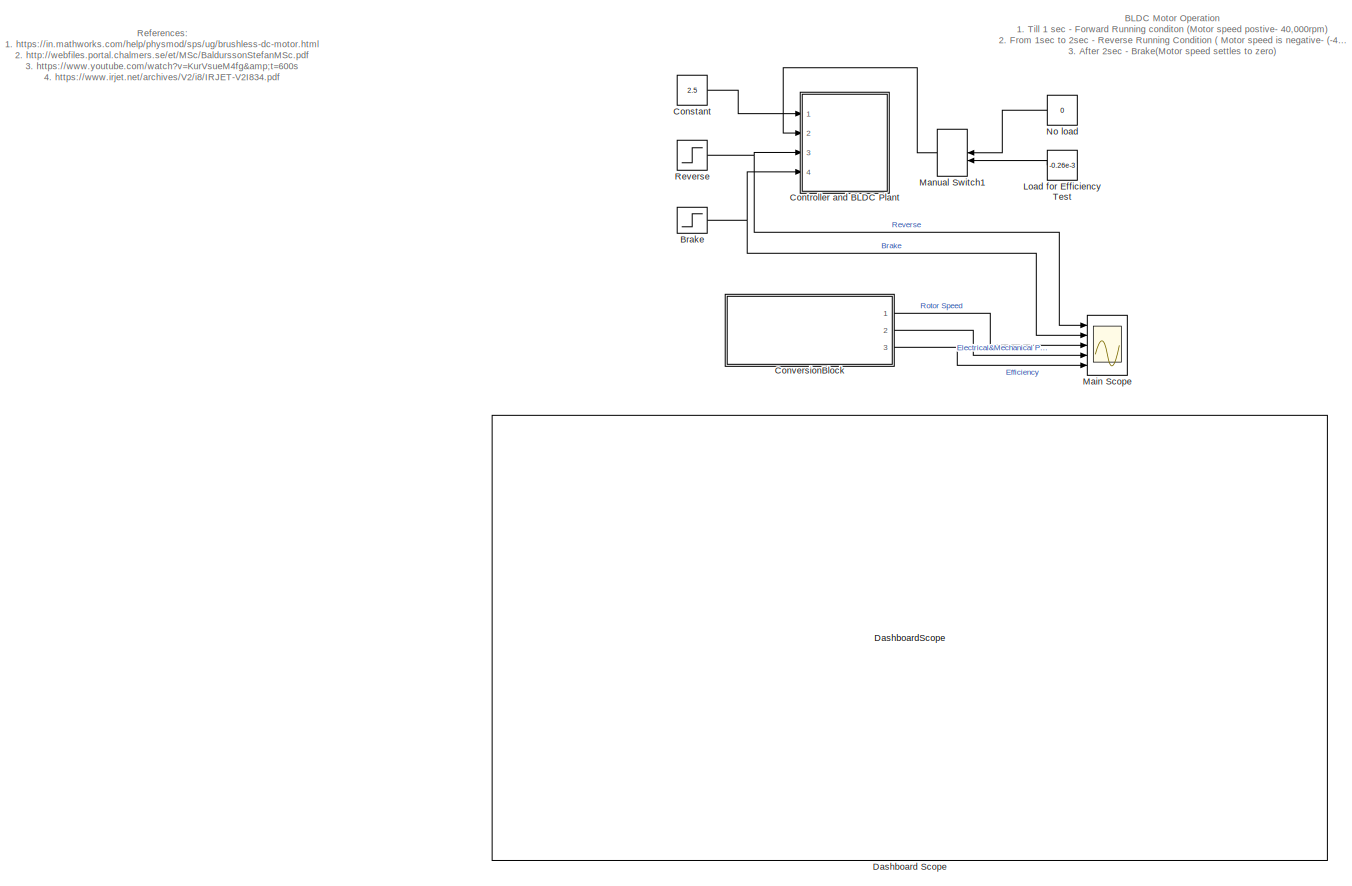
[diagram: root canvas - part 1/1, most of the canvas]
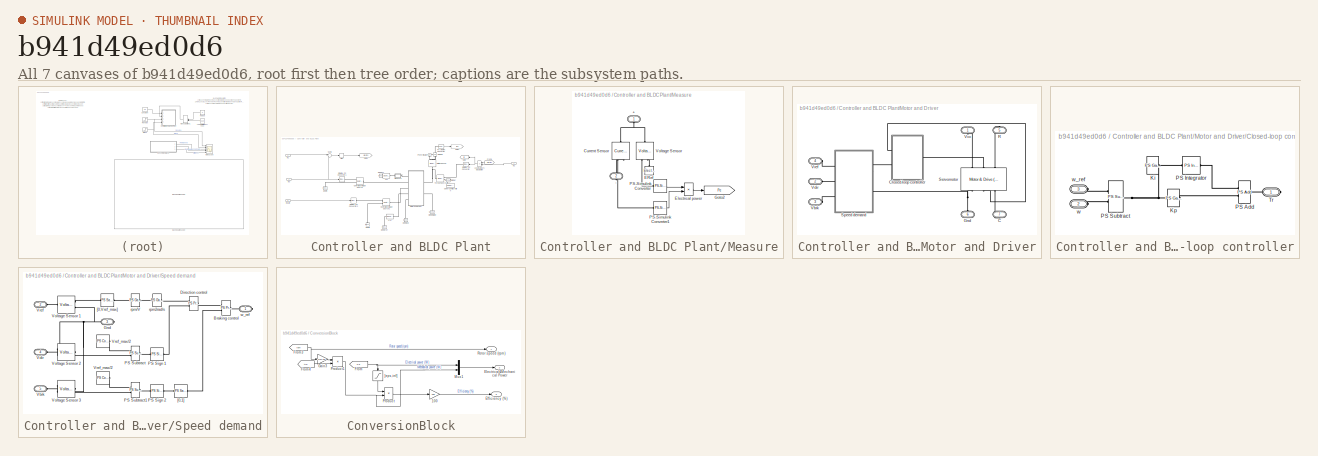
[diagram: thumbnail index - all 7 canvases of the model, root first then tree order]
MODEL slx_b941d49ed0d6
KIND model
CONFIG AbsTol = auto
CONFIG EnableMultiTasking = off
CONFIG FixedStep = auto
CONFIG MaxStep = 0.001
CONFIG MinStep = auto
CONFIG RelTol = 1e-5
CONFIG SampleTimeConstraint = Unconstrained
CONFIG SolverName = ode45
CONFIG StartTime = 0.0
CONFIG StopTime = 5
BLOCK [Step] Brake
  After = 5
  SampleTime = 0
  Time = 2
BLOCK [Constant] Constant
  Value = 2.5
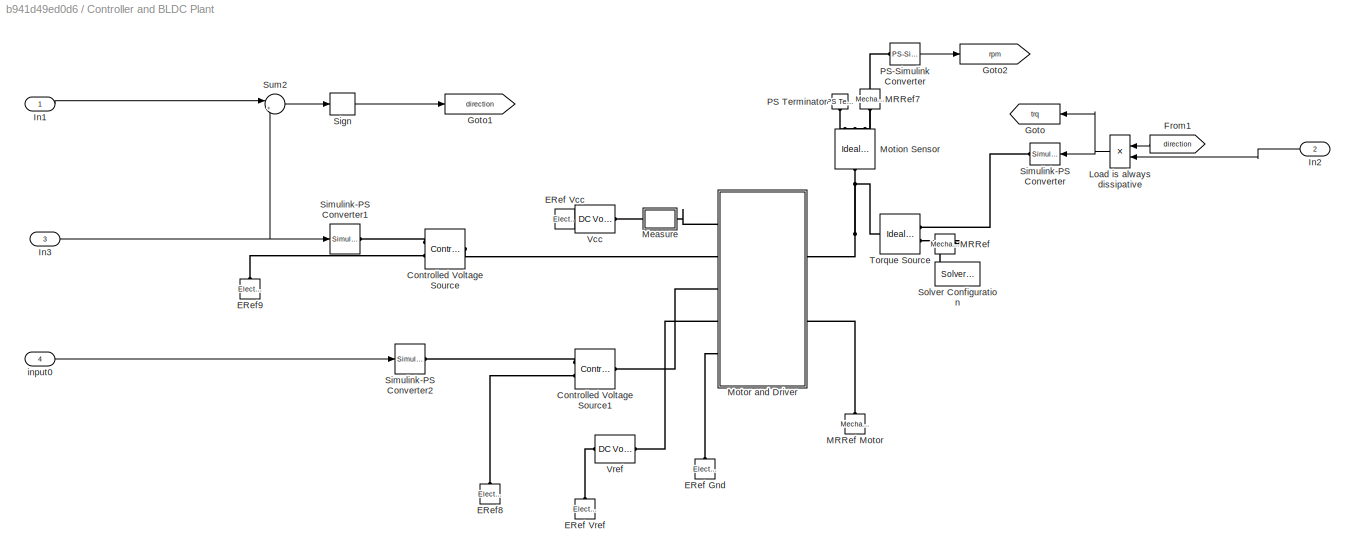
BLOCK [SubSystem] Controller and BLDC Plant
  Ports = [4]
  RequestExecContextInheritance = off
BLOCK [Reference] Controller and BLDC Plant/Controlled Voltage Source  REF=fl_lib/Electrical/Electrical Sources/Controlled Voltage
Source
  Ports = [0, 0, 0, 0, 0, 1, 2]
  SourceBlock = fl_lib/Electrical/Electrical Sources/Controlled Voltage\nSource
  SourceProductName = Foundation Library
  SourceType = Controlled Voltage\nSource
BLOCK [Reference] Controller and BLDC Plant/Controlled Voltage Source1  REF=fl_lib/Electrical/Electrical Sources/Controlled Voltage
Source
  Ports = [0, 0, 0, 0, 0, 1, 2]
  SourceBlock = fl_lib/Electrical/Electrical Sources/Controlled Voltage\nSource
  SourceProductName = Foundation Library
  SourceType = Controlled Voltage\nSource
BLOCK [Reference] Controller and BLDC Plant/ERef Gnd  REF=fl_lib/Electrical/Electrical Elements/Electrical Reference
  NameLocation = right
  Ports = [0, 0, 0, 0, 0, 1]
  SourceBlock = fl_lib/Electrical/Electrical Elements/Electrical Reference
  SourceProductName = Foundation Library
  SourceType = Electrical Reference
BLOCK [Reference] Controller and BLDC Plant/ERef Vcc  REF=fl_lib/Electrical/Electrical Elements/Electrical Reference
  Ports = [0, 0, 0, 0, 0, 1]
  SourceBlock = fl_lib/Electrical/Electrical Elements/Electrical Reference
  SourceProductName = Foundation Library
  SourceType = Electrical Reference
BLOCK [Reference] Controller and BLDC Plant/ERef Vref  REF=fl_lib/Electrical/Electrical Elements/Electrical Reference
  NameLocation = right
  Ports = [0, 0, 0, 0, 0, 1]
  SourceBlock = fl_lib/Electrical/Electrical Elements/Electrical Reference
  SourceProductName = Foundation Library
  SourceType = Electrical Reference
BLOCK [Reference] Controller and BLDC Plant/ERef8  REF=fl_lib/Electrical/Electrical Elements/Electrical Reference
  NameLocation = right
  Ports = [0, 0, 0, 0, 0, 1]
  SourceBlock = fl_lib/Electrical/Electrical Elements/Electrical Reference
  SourceProductName = Foundation Library
  SourceType = Electrical Reference
BLOCK [Reference] Controller and BLDC Plant/ERef9  REF=fl_lib/Electrical/Electrical Elements/Electrical Reference
  NameLocation = right
  Ports = [0, 0, 0, 0, 0, 1]
  SourceBlock = fl_lib/Electrical/Electrical Elements/Electrical Reference
  SourceProductName = Foundation Library
  SourceType = Electrical Reference
BLOCK [From] Controller and BLDC Plant/From1
  GotoTag = direction
  TagVisibility = global
BLOCK [Goto] Controller and BLDC Plant/Goto
  GotoTag = trq
  NameLocation = top
  TagVisibility = global
BLOCK [Goto] Controller and BLDC Plant/Goto1
  GotoTag = direction
  TagVisibility = global
BLOCK [Goto] Controller and BLDC Plant/Goto2
  GotoTag = rpm
  TagVisibility = global
BLOCK [Inport] Controller and BLDC Plant/In1
BLOCK [Inport] Controller and BLDC Plant/In2
  Port = 2
BLOCK [Inport] Controller and BLDC Plant/In3
  Port = 3
BLOCK [Product] Controller and BLDC Plant/Load is always dissipative
  InputSameDT = on
  OutDataTypeStr = Inherit: Same as first input
  Ports = [2, 1]
  SaturateOnIntegerOverflow = on
BLOCK [Reference] Controller and BLDC Plant/MRRef  REF=fl_lib/Mechanical/Rotational Elements/Mechanical
Rotational Reference
  Ports = [0, 0, 0, 0, 0, 1]
  SourceBlock = fl_lib/Mechanical/Rotational Elements/Mechanical\nRotational Reference
  SourceProductName = Foundation Library
  SourceType = Mechanical\nRotational Reference
BLOCK [Reference] Controller and BLDC Plant/MRRef Motor  REF=fl_lib/Mechanical/Rotational Elements/Mechanical
Rotational Reference
  NameLocation = right
  Ports = [0, 0, 0, 0, 0, 1]
  SourceBlock = fl_lib/Mechanical/Rotational Elements/Mechanical\nRotational Reference
  SourceProductName = Foundation Library
  SourceType = Mechanical\nRotational Reference
BLOCK [Reference] Controller and BLDC Plant/MRRef7  REF=fl_lib/Mechanical/Rotational Elements/Mechanical
Rotational Reference
  NameLocation = left
  Ports = [0, 0, 0, 0, 0, 1]
  SourceBlock = fl_lib/Mechanical/Rotational Elements/Mechanical\nRotational Reference
  SourceProductName = Foundation Library
  SourceType = Mechanical\nRotational Reference
BLOCK [SubSystem] Controller and BLDC Plant/Measure
  Ports = [0, 0, 0, 0, 0, 1, 1]
  RequestExecContextInheritance = off
BLOCK [PMIOPort] Controller and BLDC Plant/Measure/+
  NameLocation = right
  Side = Left
BLOCK [PMIOPort] Controller and BLDC Plant/Measure/-
  NameLocation = left
  Port = 2
  Side = Right
BLOCK [Reference] Controller and BLDC Plant/Measure/Current Sensor  REF=fl_lib/Electrical/Electrical Sensors/Current Sensor
  NameLocation = left
  Ports = [0, 0, 0, 0, 0, 1, 2]
  SourceBlock = fl_lib/Electrical/Electrical Sensors/Current Sensor
  SourceProductName = Foundation Library
  SourceType = Current Sensor
BLOCK [Reference] Controller and BLDC Plant/Measure/ERef  REF=fl_lib/Electrical/Electrical Elements/Electrical Reference
  NameLocation = right
  Ports = [0, 0, 0, 0, 0, 1]
  SourceBlock = fl_lib/Electrical/Electrical Elements/Electrical Reference
  SourceProductName = Foundation Library
  SourceType = Electrical Reference
BLOCK [Product] Controller and BLDC Plant/Measure/Electrical power
  InputSameDT = on
  OutDataTypeStr = Inherit: Same as first input
  Ports = [2, 1]
  SaturateOnIntegerOverflow = on
BLOCK [Goto] Controller and BLDC Plant/Measure/Goto2
  GotoTag = Pe
  TagVisibility = global
BLOCK [Reference] Controller and BLDC Plant/Measure/PS-Simulink Converter  REF=nesl_utility/PS-Simulink
Converter
  Ports = [0, 1, 0, 0, 0, 1]
  SourceBlock = nesl_utility/PS-Simulink\nConverter
  SourceProductName = Utilities
  SourceType = PS-Simulink\nConverter
BLOCK [Reference] Controller and BLDC Plant/Measure/PS-Simulink Converter1  REF=nesl_utility/PS-Simulink
Converter
  Ports = [0, 1, 0, 0, 0, 1]
  SourceBlock = nesl_utility/PS-Simulink\nConverter
  SourceProductName = Utilities
  SourceType = PS-Simulink\nConverter
BLOCK [Reference] Controller and BLDC Plant/Measure/Voltage Sensor  REF=fl_lib/Electrical/Electrical Sensors/Voltage Sensor
  NameLocation = right
  Ports = [0, 0, 0, 0, 0, 1, 2]
  SourceBlock = fl_lib/Electrical/Electrical Sensors/Voltage Sensor
  SourceProductName = Foundation Library
  SourceType = Voltage Sensor
BLOCK [Reference] Controller and BLDC Plant/Motion Sensor  REF=fl_lib/Mechanical/Mechanical Sensors/Ideal Rotational
Motion Sensor
  NameLocation = left
  Ports = [0, 0, 0, 0, 0, 1, 3]
  SourceBlock = fl_lib/Mechanical/Mechanical Sensors/Ideal Rotational\nMotion Sensor
  SourceProductName = Foundation Library
  SourceType = Ideal Rotational\nMotion Sensor
BLOCK [SubSystem] Controller and BLDC Plant/Motor and Driver
  Ports = [0, 0, 0, 0, 0, 5, 2]
  RequestExecContextInheritance = off
  Tag = PublishSubsystem
BLOCK [PMIOPort] Controller and BLDC Plant/Motor and Driver/C
  NameLocation = right
  Port = 7
  Side = Right
BLOCK [SubSystem] Controller and BLDC Plant/Motor and Driver/Closed-loop controller
  Ports = [0, 0, 0, 0, 0, 2, 1]
  RequestExecContextInheritance = off
BLOCK [Reference] Controller and BLDC Plant/Motor and Driver/Closed-loop controller/Ki  REF=fl_ps_legacy_lib/Legacy Physical
Signals/Functions/PS Gain
  Ports = [0, 0, 0, 0, 0, 1, 1]
  SourceBlock = fl_ps_legacy_lib/Legacy Physical\nSignals/Functions/PS Gain
  SourceProductBaseCode = SS
  SourceType = PS Gain
BLOCK [Reference] Controller and BLDC Plant/Motor and Driver/Closed-loop controller/Kp  REF=fl_ps_legacy_lib/Legacy Physical
Signals/Functions/PS Gain
  Ports = [0, 0, 0, 0, 0, 1, 1]
  SourceBlock = fl_ps_legacy_lib/Legacy Physical\nSignals/Functions/PS Gain
  SourceProductBaseCode = SS
  SourceType = PS Gain
BLOCK [Reference] Controller and BLDC Plant/Motor and Driver/Closed-loop controller/PS Add  REF=fl_ps_legacy_lib/Legacy Physical
Signals/Functions/PS Add
  Ports = [0, 0, 0, 0, 0, 2, 1]
  SourceBlock = fl_ps_legacy_lib/Legacy Physical\nSignals/Functions/PS Add
  SourceProductBaseCode = SS
  SourceType = PS Add
BLOCK [Reference] Controller and BLDC Plant/Motor and Driver/Closed-loop controller/PS Integrator  REF=fl_ps_legacy_lib/Legacy Physical
Signals/Linear Operators/PS Integrator
  Ports = [0, 0, 0, 0, 0, 1, 1]
  SourceBlock = fl_ps_legacy_lib/Legacy Physical\nSignals/Linear Operators/PS Integrator
  SourceProductBaseCode = SS
  SourceType = PS Integrator
BLOCK [Reference] Controller and BLDC Plant/Motor and Driver/Closed-loop controller/PS Subtract  REF=fl_ps_legacy_lib/Legacy Physical
Signals/Functions/PS Subtract
  Ports = [0, 0, 0, 0, 0, 2, 1]
  SourceBlock = fl_ps_legacy_lib/Legacy Physical\nSignals/Functions/PS Subtract
  SourceProductBaseCode = SS
  SourceType = PS Subtract
BLOCK [PMIOPort] Controller and BLDC Plant/Motor and Driver/Closed-loop controller/Tr
  Side = Right
BLOCK [PMIOPort] Controller and BLDC Plant/Motor and Driver/Closed-loop controller/w
  Port = 2
  Side = Left
BLOCK [PMIOPort] Controller and BLDC Plant/Motor and Driver/Closed-loop controller/w_ref
  NameLocation = top
  Port = 3
  Side = Left
BLOCK [PMIOPort] Controller and BLDC Plant/Motor and Driver/Gnd
  NameLocation = left
  Port = 6
  Side = Left
BLOCK [PMIOPort] Controller and BLDC Plant/Motor and Driver/R
  NameLocation = right
  Port = 5
  Side = Right
BLOCK [Reference] Controller and BLDC Plant/Motor and Driver/Servomotor  REF=ee_lib/Electromechanical/Motor & Drive
(System Level)
  NameLocation = left
  Ports = [0, 0, 0, 0, 0, 3, 3]
  SourceBlock = ee_lib/Electromechanical/Motor & Drive\n(System Level)
  SourceProductName = Electrical
  SourceType = Motor & Drive\n(System Level)
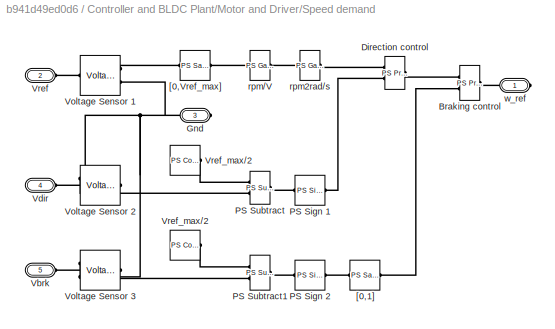
BLOCK [SubSystem] Controller and BLDC Plant/Motor and Driver/Speed demand
  Ports = [0, 0, 0, 0, 0, 3, 2]
  RequestExecContextInheritance = off
BLOCK [Reference] Controller and BLDC Plant/Motor and Driver/Speed demand/ Vref_max//2   REF=fl_lib/Physical Signals/Sources/PS Constant
  Ports = [0, 0, 0, 0, 0, 0, 1]
  SourceBlock = fl_lib/Physical Signals/Sources/PS Constant
  SourceProductName = Foundation Library
  SourceType = PS Constant
BLOCK [Reference] Controller and BLDC Plant/Motor and Driver/Speed demand/Braking control  REF=fl_ps_legacy_lib/Legacy Physical
Signals/Functions/PS Product
  Ports = [0, 0, 0, 0, 0, 2, 1]
  SourceBlock = fl_ps_legacy_lib/Legacy Physical\nSignals/Functions/PS Product
  SourceProductBaseCode = SS
  SourceType = PS Product
BLOCK [Reference] Controller and BLDC Plant/Motor and Driver/Speed demand/Direction control  REF=fl_ps_legacy_lib/Legacy Physical
Signals/Functions/PS Product
  Ports = [0, 0, 0, 0, 0, 2, 1]
  SourceBlock = fl_ps_legacy_lib/Legacy Physical\nSignals/Functions/PS Product
  SourceProductBaseCode = SS
  SourceType = PS Product
BLOCK [PMIOPort] Controller and BLDC Plant/Motor and Driver/Speed demand/Gnd
  Port = 3
  Side = Right
BLOCK [Reference] Controller and BLDC Plant/Motor and Driver/Speed demand/PS Sign 1  REF=fl_ps_legacy_lib/Legacy Physical
Signals/Nonlinear Operators/PS Sign
  Ports = [0, 0, 0, 0, 0, 1, 1]
  SourceBlock = fl_ps_legacy_lib/Legacy Physical\nSignals/Nonlinear Operators/PS Sign
  SourceProductBaseCode = SS
  SourceType = PS Sign
BLOCK [Reference] Controller and BLDC Plant/Motor and Driver/Speed demand/PS Sign 2  REF=fl_ps_legacy_lib/Legacy Physical
Signals/Nonlinear Operators/PS Sign
  Ports = [0, 0, 0, 0, 0, 1, 1]
  SourceBlock = fl_ps_legacy_lib/Legacy Physical\nSignals/Nonlinear Operators/PS Sign
  SourceProductBaseCode = SS
  SourceType = PS Sign
BLOCK [Reference] Controller and BLDC Plant/Motor and Driver/Speed demand/PS Subtract  REF=fl_ps_legacy_lib/Legacy Physical
Signals/Functions/PS Subtract
  Ports = [0, 0, 0, 0, 0, 2, 1]
  SourceBlock = fl_ps_legacy_lib/Legacy Physical\nSignals/Functions/PS Subtract
  SourceProductBaseCode = SS
  SourceType = PS Subtract
BLOCK [Reference] Controller and BLDC Plant/Motor and Driver/Speed demand/PS Subtract1  REF=fl_ps_legacy_lib/Legacy Physical
Signals/Functions/PS Subtract
  Ports = [0, 0, 0, 0, 0, 2, 1]
  SourceBlock = fl_ps_legacy_lib/Legacy Physical\nSignals/Functions/PS Subtract
  SourceProductBaseCode = SS
  SourceType = PS Subtract
BLOCK [PMIOPort] Controller and BLDC Plant/Motor and Driver/Speed demand/Vbrk
  Port = 5
  Side = Left
BLOCK [PMIOPort] Controller and BLDC Plant/Motor and Driver/Speed demand/Vdir
  Port = 4
  Side = Left
BLOCK [Reference] Controller and BLDC Plant/Motor and Driver/Speed demand/Voltage Sensor 1  REF=fl_lib/Electrical/Electrical Sensors/Voltage Sensor
  Ports = [0, 0, 0, 0, 0, 1, 2]
  SourceBlock = fl_lib/Electrical/Electrical Sensors/Voltage Sensor
  SourceProductName = Foundation Library
  SourceType = Voltage Sensor
BLOCK [Reference] Controller and BLDC Plant/Motor and Driver/Speed demand/Voltage Sensor 2  REF=fl_lib/Electrical/Electrical Sensors/Voltage Sensor
  Ports = [0, 0, 0, 0, 0, 1, 2]
  SourceBlock = fl_lib/Electrical/Electrical Sensors/Voltage Sensor
  SourceProductName = Foundation Library
  SourceType = Voltage Sensor
BLOCK [Reference] Controller and BLDC Plant/Motor and Driver/Speed demand/Voltage Sensor 3  REF=fl_lib/Electrical/Electrical Sensors/Voltage Sensor
  Ports = [0, 0, 0, 0, 0, 1, 2]
  SourceBlock = fl_lib/Electrical/Electrical Sensors/Voltage Sensor
  SourceProductName = Foundation Library
  SourceType = Voltage Sensor
BLOCK [PMIOPort] Controller and BLDC Plant/Motor and Driver/Speed demand/Vref
  Port = 2
  Side = Left
BLOCK [Reference] Controller and BLDC Plant/Motor and Driver/Speed demand/Vref_max//2  REF=fl_lib/Physical Signals/Sources/PS Constant
  Ports = [0, 0, 0, 0, 0, 0, 1]
  SourceBlock = fl_lib/Physical Signals/Sources/PS Constant
  SourceProductName = Foundation Library
  SourceType = PS Constant
BLOCK [Reference] Controller and BLDC Plant/Motor and Driver/Speed demand/[0,1]  REF=fl_ps_legacy_lib/Legacy Physical
Signals/Nonlinear Operators/PS Saturation
  Ports = [0, 0, 0, 0, 0, 1, 1]
  SourceBlock = fl_ps_legacy_lib/Legacy Physical\nSignals/Nonlinear Operators/PS Saturation
  SourceProductBaseCode = SS
  SourceType = PS Saturation
BLOCK [Reference] Controller and BLDC Plant/Motor and Driver/Speed demand/[0,Vref_max]  REF=fl_ps_legacy_lib/Legacy Physical
Signals/Nonlinear Operators/PS Saturation
  Ports = [0, 0, 0, 0, 0, 1, 1]
  SourceBlock = fl_ps_legacy_lib/Legacy Physical\nSignals/Nonlinear Operators/PS Saturation
  SourceProductBaseCode = SS
  SourceType = PS Saturation
BLOCK [Reference] Controller and BLDC Plant/Motor and Driver/Speed demand/rpm//V  REF=fl_ps_legacy_lib/Legacy Physical
Signals/Functions/PS Gain
  Ports = [0, 0, 0, 0, 0, 1, 1]
  SourceBlock = fl_ps_legacy_lib/Legacy Physical\nSignals/Functions/PS Gain
  SourceProductBaseCode = SS
  SourceType = PS Gain
BLOCK [Reference] Controller and BLDC Plant/Motor and Driver/Speed demand/rpm2rad//s  REF=fl_ps_legacy_lib/Legacy Physical
Signals/Functions/PS Gain
  Ports = [0, 0, 0, 0, 0, 1, 1]
  SourceBlock = fl_ps_legacy_lib/Legacy Physical\nSignals/Functions/PS Gain
  SourceProductBaseCode = SS
  SourceType = PS Gain
BLOCK [PMIOPort] Controller and BLDC Plant/Motor and Driver/Speed demand/w_ref
  Side = Right
BLOCK [PMIOPort] Controller and BLDC Plant/Motor and Driver/Vbrk
  Port = 3
  Side = Left
BLOCK [PMIOPort] Controller and BLDC Plant/Motor and Driver/Vcc
  NameLocation = left
  Side = Left
BLOCK [PMIOPort] Controller and BLDC Plant/Motor and Driver/Vdir
  Port = 2
  Side = Left
BLOCK [PMIOPort] Controller and BLDC Plant/Motor and Driver/Vref
  Port = 4
  Side = Left
BLOCK [Reference] Controller and BLDC Plant/PS Terminator  REF=fl_lib/Physical Signals/Sinks/PS Terminator
  NameLocation = right
  Ports = [0, 0, 0, 0, 0, 1]
  SourceBlock = fl_lib/Physical Signals/Sinks/PS Terminator
  SourceProductName = Foundation Library
  SourceType = PS Terminator
BLOCK [Reference] Controller and BLDC Plant/PS-Simulink Converter  REF=nesl_utility/PS-Simulink
Converter
  Ports = [0, 1, 0, 0, 0, 1]
  SourceBlock = nesl_utility/PS-Simulink\nConverter
  SourceProductName = Utilities
  SourceType = PS-Simulink\nConverter
BLOCK [Signum] Controller and BLDC Plant/Sign
BLOCK [Reference] Controller and BLDC Plant/Simulink-PS Converter  REF=nesl_utility/Simulink-PS
Converter
  NameLocation = top
  Ports = [1, 0, 0, 0, 0, 0, 1]
  SourceBlock = nesl_utility/Simulink-PS\nConverter
  SourceProductName = Utilities
  SourceType = Simulink-PS\nConverter
BLOCK [Reference] Controller and BLDC Plant/Simulink-PS Converter1  REF=nesl_utility/Simulink-PS
Converter
  Ports = [1, 0, 0, 0, 0, 0, 1]
  SourceBlock = nesl_utility/Simulink-PS\nConverter
  SourceProductName = Utilities
  SourceType = Simulink-PS\nConverter
BLOCK [Reference] Controller and BLDC Plant/Simulink-PS Converter2  REF=nesl_utility/Simulink-PS
Converter
  Ports = [1, 0, 0, 0, 0, 0, 1]
  SourceBlock = nesl_utility/Simulink-PS\nConverter
  SourceProductName = Utilities
  SourceType = Simulink-PS\nConverter
BLOCK [Reference] Controller and BLDC Plant/Solver Configuration  REF=nesl_utility/Solver
Configuration
  NameLocation = top
  Ports = [0, 0, 0, 0, 0, 0, 1]
  SourceBlock = nesl_utility/Solver\nConfiguration
  SourceProductName = Utilities
  SourceType = Solver\nConfiguration
BLOCK [Sum] Controller and BLDC Plant/Sum2
  InputSameDT = on
  Inputs = |+-
  OutDataTypeStr = Inherit: Same as first input
  Ports = [2, 1]
  SaturateOnIntegerOverflow = on
BLOCK [Reference] Controller and BLDC Plant/Torque Source  REF=fl_lib/Mechanical/Mechanical Sources/Ideal Torque Source
  NameLocation = top
  Ports = [0, 0, 0, 0, 0, 1, 2]
  SourceBlock = fl_lib/Mechanical/Mechanical Sources/Ideal Torque Source
  SourceProductName = Foundation Library
  SourceType = Ideal Torque Source
BLOCK [Reference] Controller and BLDC Plant/Vcc  REF=fl_lib/Electrical/Electrical Sources/DC Voltage Source
  AttributesFormatString = %<v0> %<v0_unit>
  Ports = [0, 0, 0, 0, 0, 1, 1]
  SourceBlock = fl_lib/Electrical/Electrical Sources/DC Voltage Source
  SourceProductName = Foundation Library
  SourceType = DC Voltage Source
BLOCK [Reference] Controller and BLDC Plant/Vref  REF=fl_lib/Electrical/Electrical Sources/DC Voltage Source
  AttributesFormatString = %<v0> %<v0_unit>
  Ports = [0, 0, 0, 0, 0, 1, 1]
  SourceBlock = fl_lib/Electrical/Electrical Sources/DC Voltage Source
  SourceProductName = Foundation Library
  SourceType = DC Voltage Source
BLOCK [Inport] Controller and BLDC Plant/input0
  Port = 4
BLOCK [SubSystem] ConversionBlock
  Ports = [0, 3]
  RequestExecContextInheritance = off
BLOCK [Gain] ConversionBlock/100
  Gain = 100
  OutDataTypeStr = Inherit: Same as input
  ParamDataTypeStr = Inherit: Same as input
  SaturateOnIntegerOverflow = on
BLOCK [Outport] ConversionBlock/Efficiency (%)
  Port = 3
BLOCK [Outport] ConversionBlock/Electrical&Mechanical Power
  Port = 2
BLOCK [From] ConversionBlock/From
  GotoTag = Pe
  TagVisibility = global
BLOCK [From] ConversionBlock/From3
  GotoTag = rpm
  TagVisibility = global
BLOCK [From] ConversionBlock/From4
  GotoTag = trq
  TagVisibility = global
BLOCK [Gain] ConversionBlock/Gain3
  Gain = -2*pi/60
BLOCK [Mux] ConversionBlock/Mux1
  DisplayOption = bar
  Inputs = 2
  Ports = [2, 1]
BLOCK [Product] ConversionBlock/Product
  InputSameDT = on
  Inputs = /*
  OutDataTypeStr = Inherit: Same as first input
  Ports = [2, 1]
  SaturateOnIntegerOverflow = on
BLOCK [Product] ConversionBlock/Product1
  Ports = [2, 1]
BLOCK [Outport] ConversionBlock/Rotor speed (rpm)
BLOCK [Saturate] ConversionBlock/[eps,inf]
  LowerLimit = 1e-3
  NameLocation = left
  UpperLimit = inf
BLOCK [DashboardScope] Dashboard Scope
BLOCK [Constant] Load for Efficiency Test
  Value = -0.26e-3
BLOCK [Scope] Main Scope
  Floating = off
  NumInputPorts = 5
  Ports = [5]
  ScopeSpecificationString = Simulink.scopes.TimeScopeBlockCfg('CurrentConfiguration', extmgr.ConfigurationSet(extmgr.Configuration('Core','General UI',true),extmgr.Configuration('Core','Source UI',true),extmgr.Configuration('Sources','WiredSimulink',true,'DataLoggingVariableName','ScopeData2'),extmgr.Configuration('Visuals','Time Domain',true,'SerializedDisplays',{struct('MinYLimReal','-0.625','MaxYLimReal','5.625','YLabelRe...<+6315ch>
BLOCK [ManualSwitch] Manual Switch1
  CurrentSetting = 0
BLOCK [Constant] No load
  Value = 0
BLOCK [Step] Reverse
  After = 5
  SampleTime = 0
ANNOTATION (root): BLDC Motor Operation 1. Till 1 sec - Forward Running conditon (Motor speed postive- 40,000rpm) 2. From 1sec to 2sec - Reverse Running Condition ( Motor speed is negative- (-40,000rpm) ) 3. After 2sec - Brake(Motor speed settles to zero)
ANNOTATION (root): References: 1. https://in.mathworks.com/help/physmod/sps/ug/brushless-dc-motor.html 2. http://webfiles.portal.chalmers.se/et/MSc/BaldurssonStefanMSc.pdf 3. https://www.youtube.com/watch?v=KurVsueM4fg&t=600s 4. https://www.irjet.net/archives/V2/i8/IRJET-V2I834.pdf
NET Brake:1 -> Controller and BLDC Plant:4, Main Scope:2
LINE Constant:1 -> Controller and BLDC Plant:1
LINE Controller and BLDC Plant/From1:1 -> Controller and BLDC Plant/Load is always dissipative:1
LINE Controller and BLDC Plant/In1:1 -> Controller and BLDC Plant/Sum2:1
LINE Controller and BLDC Plant/In2:1 -> Controller and BLDC Plant/Load is always dissipative:2
NET Controller and BLDC Plant/In3:1 -> Controller and BLDC Plant/Simulink-PS Converter1:1, Controller and BLDC Plant/Sum2:2
NET Controller and BLDC Plant/Load is always dissipative:1 -> Controller and BLDC Plant/Goto:1, Controller and BLDC Plant/Simulink-PS Converter:1
LINE Controller and BLDC Plant/Measure/Electrical power:1 -> Controller and BLDC Plant/Measure/Goto2:1
LINE Controller and BLDC Plant/Measure/PS-Simulink Converter1:1 -> Controller and BLDC Plant/Measure/Electrical power:2
LINE Controller and BLDC Plant/Measure/PS-Simulink Converter:1 -> Controller and BLDC Plant/Measure/Electrical power:1
LINE Controller and BLDC Plant/PS-Simulink Converter:1 -> Controller and BLDC Plant/Goto2:1
LINE Controller and BLDC Plant/Sign:1 -> Controller and BLDC Plant/Goto1:1
LINE Controller and BLDC Plant/Sum2:1 -> Controller and BLDC Plant/Sign:1
LINE Controller and BLDC Plant/input0:1 -> Controller and BLDC Plant/Simulink-PS Converter2:1
LINE ConversionBlock/100:1 -> ConversionBlock/Efficiency (%):1
NET ConversionBlock/From3:1 -> ConversionBlock/Gain3:1, ConversionBlock/Rotor speed (rpm):1
LINE ConversionBlock/From4:1 -> ConversionBlock/Product1:2
NET ConversionBlock/From:1 -> ConversionBlock/Mux1:1, ConversionBlock/[eps,inf]:1
LINE ConversionBlock/Gain3:1 -> ConversionBlock/Product1:1
LINE ConversionBlock/Mux1:1 -> ConversionBlock/Electrical&Mechanical Power:1
NET ConversionBlock/Product1:1 -> ConversionBlock/Mux1:2, ConversionBlock/Product:2
LINE ConversionBlock/Product:1 -> ConversionBlock/100:1
LINE ConversionBlock/[eps,inf]:1 -> ConversionBlock/Product:1
LINE ConversionBlock:1 -> Main Scope:3
LINE ConversionBlock:2 -> Main Scope:4
LINE ConversionBlock:3 -> Main Scope:5
LINE Load for Efficiency Test:1 -> Manual Switch1:2
LINE Manual Switch1:1 -> Controller and BLDC Plant:2
LINE No load:1 -> Manual Switch1:1
NET Reverse:1 -> Controller and BLDC Plant:3, Main Scope:1
PLINE Controller and BLDC Plant/Controlled Voltage Source1:LConn1 -- Controller and BLDC Plant/Motor and Driver:LConn3
PLINE Controller and BLDC Plant/Controlled Voltage Source1:RConn1 -- Controller and BLDC Plant/Simulink-PS Converter2:RConn1
PLINE Controller and BLDC Plant/Controlled Voltage Source1:RConn2 -- Controller and BLDC Plant/ERef8:LConn1
PLINE Controller and BLDC Plant/Controlled Voltage Source:LConn1 -- Controller and BLDC Plant/Motor and Driver:LConn2
PLINE Controller and BLDC Plant/Controlled Voltage Source:RConn1 -- Controller and BLDC Plant/Simulink-PS Converter1:RConn1
PLINE Controller and BLDC Plant/Controlled Voltage Source:RConn2 -- Controller and BLDC Plant/ERef9:LConn1
PLINE Controller and BLDC Plant/ERef Gnd:LConn1 -- Controller and BLDC Plant/Motor and Driver:LConn5
PLINE Controller and BLDC Plant/ERef Vcc:LConn1 -- Controller and BLDC Plant/Vcc:RConn1
PLINE Controller and BLDC Plant/ERef Vref:LConn1 -- Controller and BLDC Plant/Vref:RConn1
PLINE Controller and BLDC Plant/MRRef Motor:LConn1 -- Controller and BLDC Plant/Motor and Driver:RConn2
PLINE Controller and BLDC Plant/MRRef7:LConn1 -- Controller and BLDC Plant/Motion Sensor:RConn1
PNET net1: Controller and BLDC Plant/MRRef:LConn1 -- Controller and BLDC Plant/Solver Configuration:RConn1 -- Controller and BLDC Plant/Torque Source:RConn2
PNET net2: Controller and BLDC Plant/Measure/+:RConn1 -- Controller and BLDC Plant/Measure/Current Sensor:LConn1 -- Controller and BLDC Plant/Measure/Voltage Sensor:LConn1
PLINE Controller and BLDC Plant/Measure/-:RConn1 -- Controller and BLDC Plant/Measure/Current Sensor:RConn2
PLINE Controller and BLDC Plant/Measure/Current Sensor:RConn1 -- Controller and BLDC Plant/Measure/PS-Simulink Converter1:LConn1
PLINE Controller and BLDC Plant/Measure/ERef:LConn1 -- Controller and BLDC Plant/Measure/Voltage Sensor:RConn2
PLINE Controller and BLDC Plant/Measure/PS-Simulink Converter:LConn1 -- Controller and BLDC Plant/Measure/Voltage Sensor:RConn1
PLINE Controller and BLDC Plant/Measure:LConn1 -- Controller and BLDC Plant/Vcc:LConn1
PLINE Controller and BLDC Plant/Measure:RConn1 -- Controller and BLDC Plant/Motor and Driver:LConn1
PNET net3: Controller and BLDC Plant/Motion Sensor:LConn1 -- Controller and BLDC Plant/Motor and Driver:RConn1 -- Controller and BLDC Plant/Torque Source:LConn1
PLINE Controller and BLDC Plant/Motion Sensor:RConn2 -- Controller and BLDC Plant/PS-Simulink Converter:LConn1
PLINE Controller and BLDC Plant/Motion Sensor:RConn3 -- Controller and BLDC Plant/PS Terminator:LConn1
PLINE Controller and BLDC Plant/Motor and Driver/C:RConn1 -- Controller and BLDC Plant/Motor and Driver/Servomotor:RConn3
PNET net4: Controller and BLDC Plant/Motor and Driver/Closed-loop controller/Ki:LConn1 -- Controller and BLDC Plant/Motor and Driver/Closed-loop controller/Kp:LConn1 -- Controller and BLDC Plant/Motor and Driver/Closed-loop controller/PS Subtract:RConn1
PLINE Controller and BLDC Plant/Motor and Driver/Closed-loop controller/Ki:RConn1 -- Controller and BLDC Plant/Motor and Driver/Closed-loop controller/PS Integrator:LConn1
PLINE Controller and BLDC Plant/Motor and Driver/Closed-loop controller/Kp:RConn1 -- Controller and BLDC Plant/Motor and Driver/Closed-loop controller/PS Add:LConn2
PLINE Controller and BLDC Plant/Motor and Driver/Closed-loop controller/PS Add:LConn1 -- Controller and BLDC Plant/Motor and Driver/Closed-loop controller/PS Integrator:RConn1
PLINE Controller and BLDC Plant/Motor and Driver/Closed-loop controller/PS Add:RConn1 -- Controller and BLDC Plant/Motor and Driver/Closed-loop controller/Tr:RConn1
PLINE Controller and BLDC Plant/Motor and Driver/Closed-loop controller/PS Subtract:LConn1 -- Controller and BLDC Plant/Motor and Driver/Closed-loop controller/w_ref:RConn1
PLINE Controller and BLDC Plant/Motor and Driver/Closed-loop controller/PS Subtract:LConn2 -- Controller and BLDC Plant/Motor and Driver/Closed-loop controller/w:RConn1
PLINE Controller and BLDC Plant/Motor and Driver/Closed-loop controller:LConn1 -- Controller and BLDC Plant/Motor and Driver/Servomotor:RConn2
PLINE Controller and BLDC Plant/Motor and Driver/Closed-loop controller:LConn2 -- Controller and BLDC Plant/Motor and Driver/Speed demand:RConn1
PLINE Controller and BLDC Plant/Motor and Driver/Closed-loop controller:RConn1 -- Controller and BLDC Plant/Motor and Driver/Servomotor:LConn2
PNET net5: Controller and BLDC Plant/Motor and Driver/Gnd:RConn1 -- Controller and BLDC Plant/Motor and Driver/Servomotor:RConn1 -- Controller and BLDC Plant/Motor and Driver/Speed demand:RConn2
PLINE Controller and BLDC Plant/Motor and Driver/R:RConn1 -- Controller and BLDC Plant/Motor and Driver/Servomotor:LConn3
PLINE Controller and BLDC Plant/Motor and Driver/Servomotor:LConn1 -- Controller and BLDC Plant/Motor and Driver/Vcc:RConn1
PLINE Controller and BLDC Plant/Motor and Driver/Speed demand/ Vref_max//2 :RConn1 -- Controller and BLDC Plant/Motor and Driver/Speed demand/PS Subtract1:LConn1
PLINE Controller and BLDC Plant/Motor and Driver/Speed demand/Braking control:LConn1 -- Controller and BLDC Plant/Motor and Driver/Speed demand/Direction control:RConn1
PLINE Controller and BLDC Plant/Motor and Driver/Speed demand/Braking control:LConn2 -- Controller and BLDC Plant/Motor and Driver/Speed demand/[0,1]:RConn1
PLINE Controller and BLDC Plant/Motor and Driver/Speed demand/Braking control:RConn1 -- Controller and BLDC Plant/Motor and Driver/Speed demand/w_ref:RConn1
PLINE Controller and BLDC Plant/Motor and Driver/Speed demand/Direction control:LConn1 -- Controller and BLDC Plant/Motor and Driver/Speed demand/rpm2rad//s:RConn1
PLINE Controller and BLDC Plant/Motor and Driver/Speed demand/Direction control:LConn2 -- Controller and BLDC Plant/Motor and Driver/Speed demand/PS Sign 1:RConn1
PNET net6: Controller and BLDC Plant/Motor and Driver/Speed demand/Gnd:RConn1 -- Controller and BLDC Plant/Motor and Driver/Speed demand/Voltage Sensor 1:RConn2 -- Controller and BLDC Plant/Motor and Driver/Speed demand/Voltage Sensor 2:RConn2 -- Controller and BLDC Plant/Motor and Driver/Speed demand/Voltage Sensor 3:RConn2
PLINE Controller and BLDC Plant/Motor and Driver/Speed demand/PS Sign 1:LConn1 -- Controller and BLDC Plant/Motor and Driver/Speed demand/PS Subtract:RConn1
PLINE Controller and BLDC Plant/Motor and Driver/Speed demand/PS Sign 2:LConn1 -- Controller and BLDC Plant/Motor and Driver/Speed demand/PS Subtract1:RConn1
PLINE Controller and BLDC Plant/Motor and Driver/Speed demand/PS Sign 2:RConn1 -- Controller and BLDC Plant/Motor and Driver/Speed demand/[0,1]:LConn1
PLINE Controller and BLDC Plant/Motor and Driver/Speed demand/PS Subtract1:LConn2 -- Controller and BLDC Plant/Motor and Driver/Speed demand/Voltage Sensor 3:RConn1
PLINE Controller and BLDC Plant/Motor and Driver/Speed demand/PS Subtract:LConn1 -- Controller and BLDC Plant/Motor and Driver/Speed demand/Vref_max//2:RConn1
PLINE Controller and BLDC Plant/Motor and Driver/Speed demand/PS Subtract:LConn2 -- Controller and BLDC Plant/Motor and Driver/Speed demand/Voltage Sensor 2:RConn1
PLINE Controller and BLDC Plant/Motor and Driver/Speed demand/Vbrk:RConn1 -- Controller and BLDC Plant/Motor and Driver/Speed demand/Voltage Sensor 3:LConn1
PLINE Controller and BLDC Plant/Motor and Driver/Speed demand/Vdir:RConn1 -- Controller and BLDC Plant/Motor and Driver/Speed demand/Voltage Sensor 2:LConn1
PLINE Controller and BLDC Plant/Motor and Driver/Speed demand/Voltage Sensor 1:LConn1 -- Controller and BLDC Plant/Motor and Driver/Speed demand/Vref:RConn1
PLINE Controller and BLDC Plant/Motor and Driver/Speed demand/Voltage Sensor 1:RConn1 -- Controller and BLDC Plant/Motor and Driver/Speed demand/[0,Vref_max]:LConn1
PLINE Controller and BLDC Plant/Motor and Driver/Speed demand/[0,Vref_max]:RConn1 -- Controller and BLDC Plant/Motor and Driver/Speed demand/rpm//V:LConn1
PLINE Controller and BLDC Plant/Motor and Driver/Speed demand/rpm//V:RConn1 -- Controller and BLDC Plant/Motor and Driver/Speed demand/rpm2rad//s:LConn1
PLINE Controller and BLDC Plant/Motor and Driver/Speed demand:LConn1 -- Controller and BLDC Plant/Motor and Driver/Vref:RConn1
PLINE Controller and BLDC Plant/Motor and Driver/Speed demand:LConn2 -- Controller and BLDC Plant/Motor and Driver/Vdir:RConn1
PLINE Controller and BLDC Plant/Motor and Driver/Speed demand:LConn3 -- Controller and BLDC Plant/Motor and Driver/Vbrk:RConn1
PLINE Controller and BLDC Plant/Motor and Driver:LConn4 -- Controller and BLDC Plant/Vref:LConn1
PLINE Controller and BLDC Plant/Simulink-PS Converter:RConn1 -- Controller and BLDC Plant/Torque Source:RConn1
note: NET lines group one-source signal fan-out (src -> all destinations, sorted); 1:1 wires keep LINE; PNET lines group multi-terminal physical nets as a canonical sorted terminal list (undirected conserving connections); 2-terminal nets keep the pairwise PLINE form
